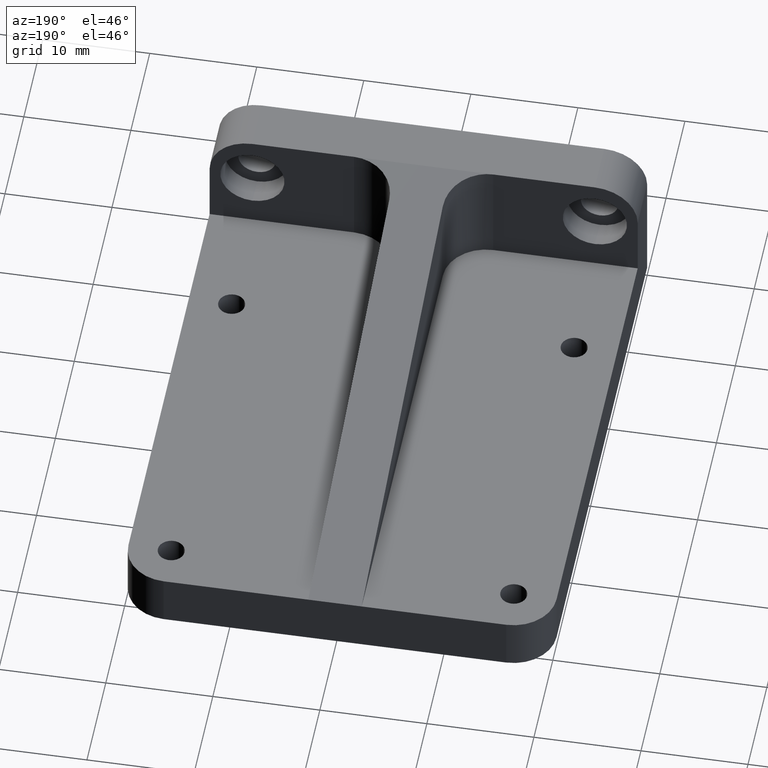
[diagram: clean part render]
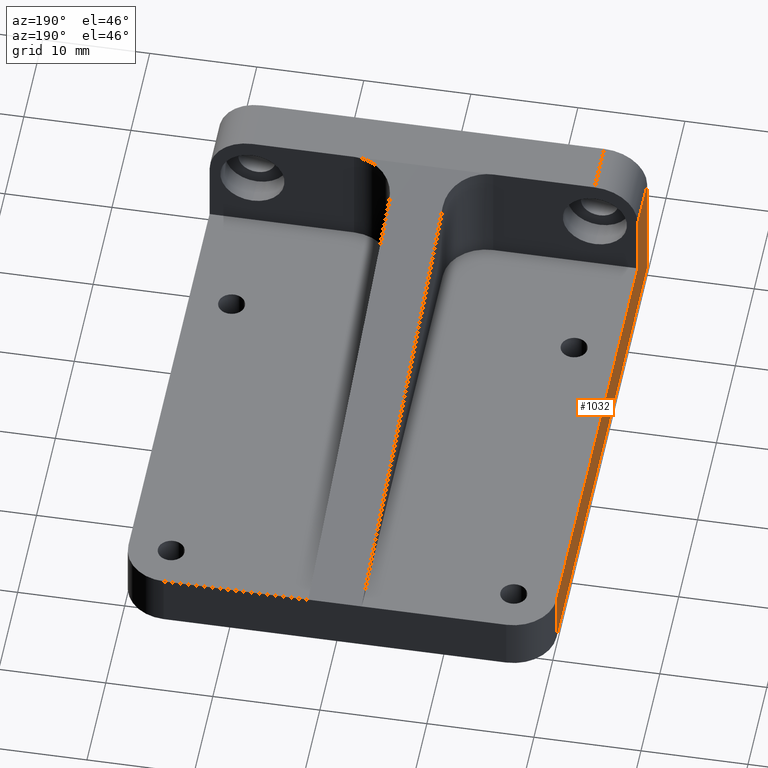
[diagram: same view with one face highlighted and labeled with its STEP entity id]
A machine part, auxiliary view. The second image highlights one B-rep face of the part: STEP entity #1032.
In plain terms, the highlighted planar face has unit normal (-1, 0, 0).
Its self-contained STEP definition (entity closure, byte-faithful):
#11 = CARTESIAN_POINT ( 'NONE',  ( -20.00000000000000000, -1.347111479062088405E-15, 11.00000000000000000 ) ) ;
#22 = CARTESIAN_POINT ( 'NONE',  ( -20.00000000000000000, 0.0000000000000000000, 0.0000000000000000000 ) ) ;
#102 = DIRECTION ( 'NONE',  ( 0.0000000000000000000, 1.000000000000000000, -0.0000000000000000000 ) ) ;
#108 = EDGE_LOOP ( 'NONE', ( #781, #296, #638, #605, #335, #715 ) ) ;
#114 = VECTOR ( 'NONE', #448, 1000.000000000000000 ) ;
#166 = CARTESIAN_POINT ( 'NONE',  ( -20.00000000000000000, 4.999999999999998224, -50.15226814412284995 ) ) ;
#190 = DIRECTION ( 'NONE',  ( -1.000000000000000000, 0.0000000000000000000, 0.0000000000000000000 ) ) ;
#296 = ORIENTED_EDGE ( 'NONE', *, *, #841, .T. ) ;
#312 = CARTESIAN_POINT ( 'NONE',  ( -20.00000000000000000, 4.999999999999998224, 10.99999999999999645 ) ) ;
#316 = CARTESIAN_POINT ( 'NONE',  ( -20.00000000000000000, 0.0000000000000000000, 0.0000000000000000000 ) ) ;
#335 = ORIENTED_EDGE ( 'NONE', *, *, #875, .T. ) ;
#339 = LINE ( 'NONE', #937, #114 ) ;
#344 = LINE ( 'NONE', #166, #698 ) ;
#357 = EDGE_CURVE ( 'NONE', #1026, #1094, #482, .T. ) ;
#416 = EDGE_CURVE ( 'NONE', #974, #878, #688, .T. ) ;
#417 = LINE ( 'NONE', #316, #893 ) ;
#448 = DIRECTION ( 'NONE',  ( -0.0000000000000000000, 1.000000000000000000, -0.0000000000000000000 ) ) ;
#459 = DIRECTION ( 'NONE',  ( -0.0000000000000000000, 0.0000000000000000000, -1.000000000000000000 ) ) ;
#482 = LINE ( 'NONE', #491, #899 ) ;
#491 = CARTESIAN_POINT ( 'NONE',  ( -20.00000000000000000, 0.0000000000000000000, 0.0000000000000000000 ) ) ;
#495 = EDGE_CURVE ( 'NONE', #1126, #1026, #417, .T. ) ;
#538 = CARTESIAN_POINT ( 'NONE',  ( -20.00000000000000000, 4.999999999999998224, 4.999999999999997335 ) ) ;
#567 = DIRECTION ( 'NONE',  ( 0.0000000000000000000, 0.0000000000000000000, 1.000000000000000000 ) ) ;
#605 = ORIENTED_EDGE ( 'NONE', *, *, #416, .T. ) ;
#638 = ORIENTED_EDGE ( 'NONE', *, *, #726, .F. ) ;
#688 = LINE ( 'NONE', #966, #744 ) ;
#698 = VECTOR ( 'NONE', #1115, 1000.000000000000000 ) ;
#715 = ORIENTED_EDGE ( 'NONE', *, *, #357, .F. ) ;
#726 = EDGE_CURVE ( 'NONE', #974, #1169, #344, .T. ) ;
#742 = VECTOR ( 'NONE', #459, 1000.000000000000000 ) ;
#743 = CARTESIAN_POINT ( 'NONE',  ( -20.00000000000000000, 47.99999999999998579, 0.0000000000000000000 ) ) ;
#744 = VECTOR ( 'NONE', #102, 1000.000000000000000 ) ;
#781 = ORIENTED_EDGE ( 'NONE', *, *, #495, .F. ) ;
#804 = AXIS2_PLACEMENT_3D ( 'NONE', #22, #190, #567 ) ;
#841 = EDGE_CURVE ( 'NONE', #1126, #1169, #339, .T. ) ;
#860 = CARTESIAN_POINT ( 'NONE',  ( -20.00000000000000000, 0.0000000000000000000, 0.0000000000000000000 ) ) ;
#865 = CARTESIAN_POINT ( 'NONE',  ( -20.00000000000000000, 48.00000000000000000, 4.999999999999997335 ) ) ;
#875 = EDGE_CURVE ( 'NONE', #878, #1094, #1111, .T. ) ;
#878 = VERTEX_POINT ( 'NONE', #865 ) ;
#893 = VECTOR ( 'NONE', #1011, 1000.000000000000000 ) ;
#899 = VECTOR ( 'NONE', #1203, 1000.000000000000000 ) ;
#937 = CARTESIAN_POINT ( 'NONE',  ( -20.00000000000000000, 4.999999999999998224, 11.00000000000000000 ) ) ;
#966 = CARTESIAN_POINT ( 'NONE',  ( -20.00000000000000000, 4.999999999999998224, 4.999999999999997335 ) ) ;
#967 = PLANE ( 'NONE',  #804 ) ;
#974 = VERTEX_POINT ( 'NONE', #538 ) ;
#1011 = DIRECTION ( 'NONE',  ( -0.0000000000000000000, 1.224646799147353207E-16, -1.000000000000000000 ) ) ;
#1026 = VERTEX_POINT ( 'NONE', #860 ) ;
#1032 = ADVANCED_FACE ( 'NONE', ( #1055 ), #967, .T. ) ;
#1055 = FACE_OUTER_BOUND ( 'NONE', #108, .T. ) ;
#1094 = VERTEX_POINT ( 'NONE', #743 ) ;
#1111 = LINE ( 'NONE', #1204, #742 ) ;
#1115 = DIRECTION ( 'NONE',  ( -0.0000000000000000000, -0.0000000000000000000, 1.000000000000000000 ) ) ;
#1126 = VERTEX_POINT ( 'NONE', #11 ) ;
#1169 = VERTEX_POINT ( 'NONE', #312 ) ;
#1203 = DIRECTION ( 'NONE',  ( 0.0000000000000000000, 1.000000000000000000, 0.0000000000000000000 ) ) ;
#1204 = CARTESIAN_POINT ( 'NONE',  ( -20.00000000000000000, 48.00000000000000000, 0.0000000000000000000 ) ) ;